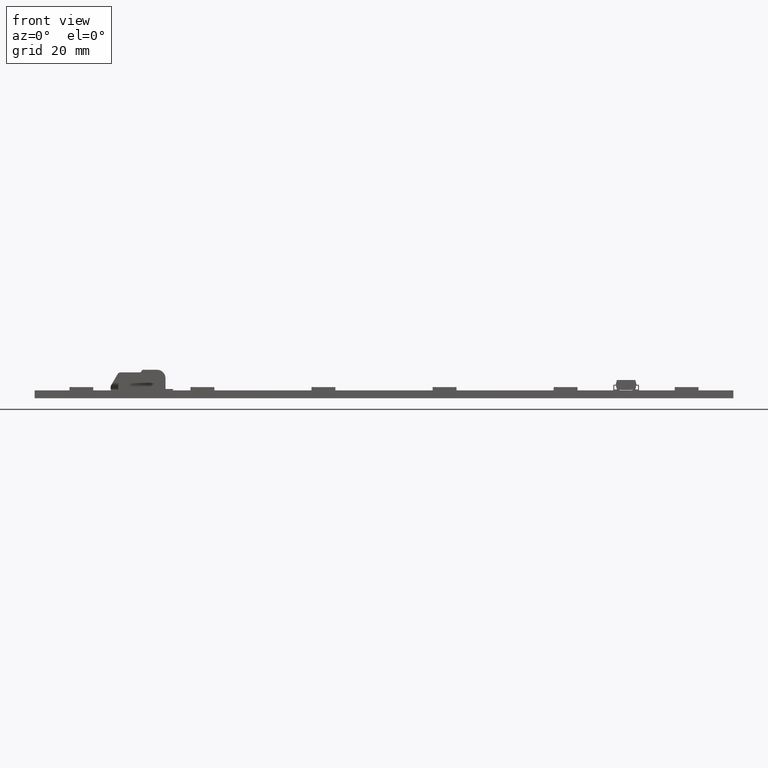
[diagram: clean part render]
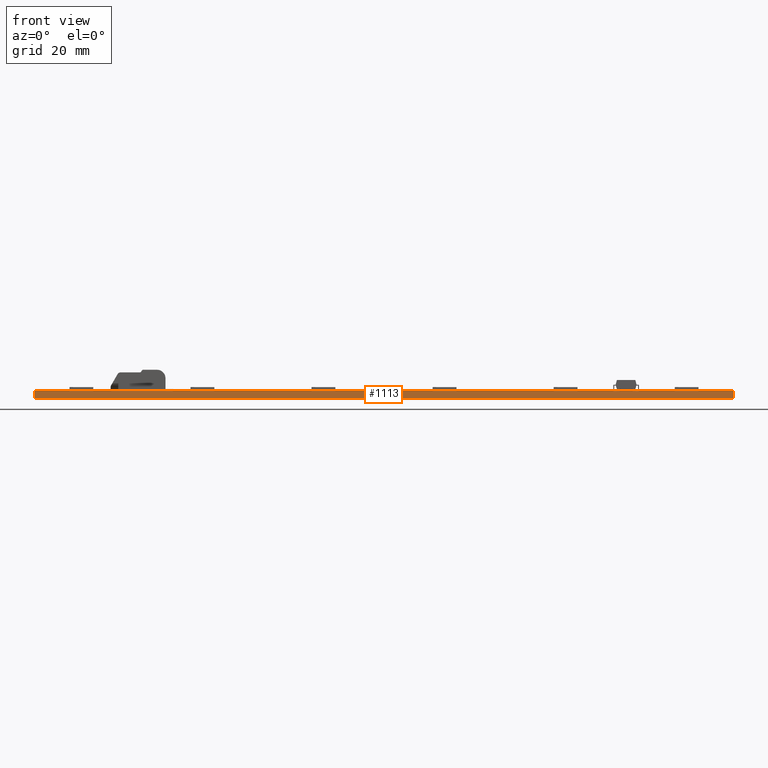
[diagram: same view with one face highlighted and labeled with its STEP entity id]
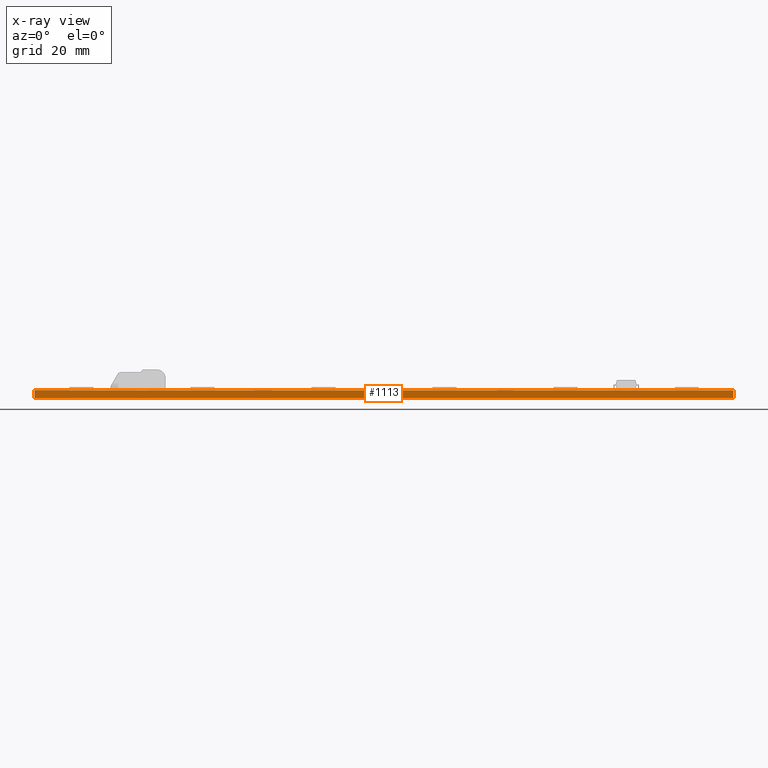
[diagram: x-ray of the same camera — body ghosted, the highlighted face saturated]
A machine part, front view. The second image highlights one B-rep face of the part: STEP entity #1113.
The next image is the same camera in x-ray: the body ghosted, the highlighted face saturated — about 0% of this face is hidden behind the body in this view.
In plain terms, the highlighted planar face has unit normal (0, -1, 0).
Its self-contained STEP definition (entity closure, byte-faithful):
#1113=ADVANCED_FACE('',(#1549),#1379,.T.);
#1379=PLANE('',#5798);
#1549=FACE_OUTER_BOUND('',#1799,.T.);
#1799=EDGE_LOOP('',(#2098,#2099,#2100,#2101));
#2098=ORIENTED_EDGE('',*,*,#4034,.F.);
#2099=ORIENTED_EDGE('',*,*,#4035,.F.);
#2100=ORIENTED_EDGE('',*,*,#4036,.T.);
#2101=ORIENTED_EDGE('',*,*,#4037,.T.);
#3548=VERTEX_POINT('',#7695);
#3549=VERTEX_POINT('',#7696);
#3550=VERTEX_POINT('',#7698);
#3551=VERTEX_POINT('',#7700);
#4034=EDGE_CURVE('',#3548,#3549,#4759,.T.);
#4035=EDGE_CURVE('',#3550,#3548,#4760,.T.);
#4036=EDGE_CURVE('',#3550,#3551,#4761,.T.);
#4037=EDGE_CURVE('',#3551,#3549,#4762,.T.);
#4759=LINE('',#7694,#5278);
#4760=LINE('',#7697,#5279);
#4761=LINE('',#7699,#5280);
#4762=LINE('',#7701,#5281);
#5278=VECTOR('',#6258,1.);
#5279=VECTOR('',#6259,1.);
#5280=VECTOR('',#6260,1.);
#5281=VECTOR('',#6261,1.);
#5798=AXIS2_PLACEMENT_3D('',#7702,#6262,#6263);
#6258=DIRECTION('',(1.,0.,0.));
#6259=DIRECTION('',(0.,0.,1.));
#6260=DIRECTION('',(1.,0.,0.));
#6261=DIRECTION('',(0.,0.,1.));
#6262=DIRECTION('',(0.,-1.,0.));
#6263=DIRECTION('',(0.,0.,-1.));
#7694=CARTESIAN_POINT('',(0.,0.,0.));
#7695=CARTESIAN_POINT('',(0.,0.,0.));
#7696=CARTESIAN_POINT('',(146.6,0.,0.));
#7697=CARTESIAN_POINT('',(0.,0.,-1.65));
#7698=CARTESIAN_POINT('',(0.,0.,-1.65));
#7699=CARTESIAN_POINT('',(0.,0.,-1.65));
#7700=CARTESIAN_POINT('',(146.6,0.,-1.65));
#7701=CARTESIAN_POINT('',(146.6,0.,-1.65));
#7702=CARTESIAN_POINT('',(0.,0.,-1.65));